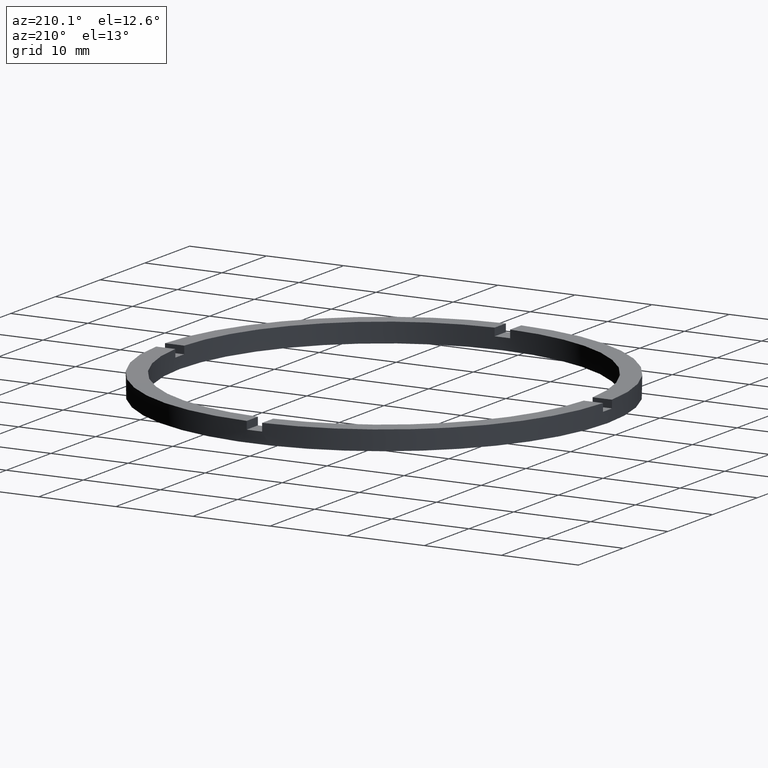
[diagram: clean part render]
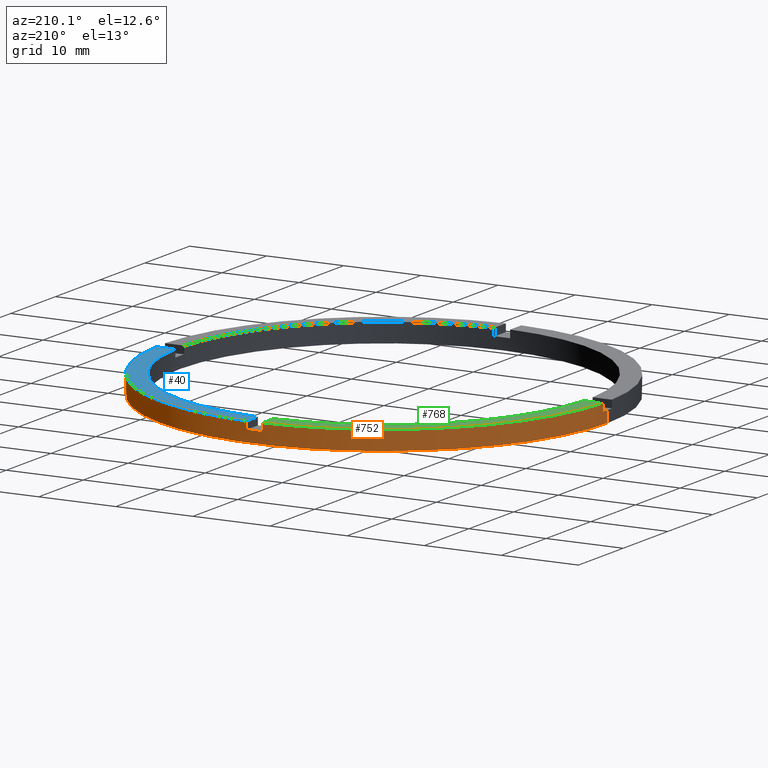
[diagram: same view with three faces highlighted in distinct colors, each labeled with its STEP entity id]
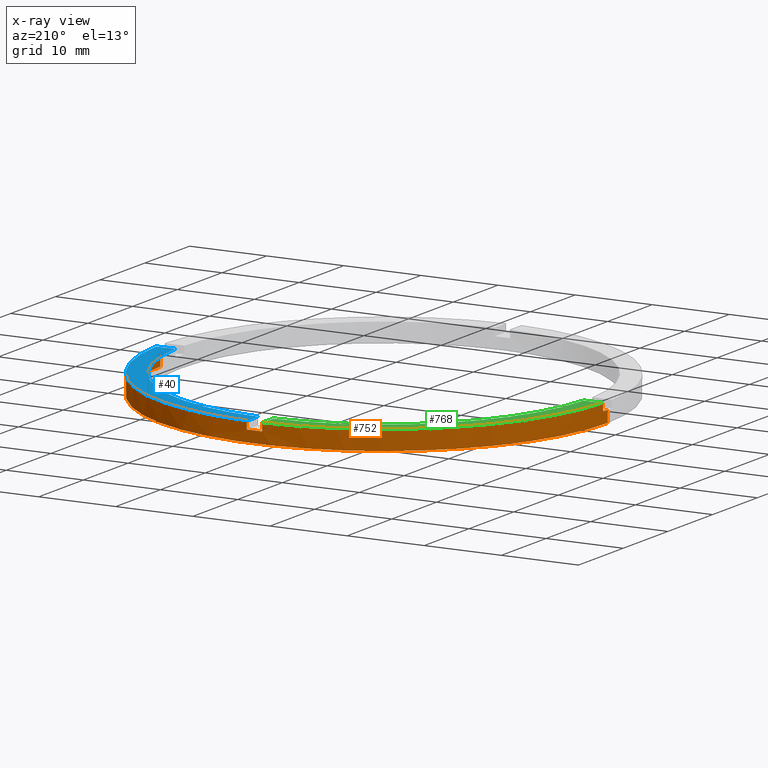
[diagram: x-ray of the same camera — body ghosted, the three highlighted faces saturated]
A machine part, auxiliary view with three faces highlighted in distinct colors.
The next image is the same camera in x-ray (body ghosted, the three faces saturated) — at least one of them is partly hidden behind the body in this view.
Their STEP definitions:

[orange] entity #752 — the highlighted cylindrical surface (partial cylindrical patch) has radius 29 mm, axis along (-0, -0, -1).
#1 = CARTESIAN_POINT ( 'NONE',  ( 0.000000000000000000, 0.000000000000000000, 1.500000000000000000 ) ) ;
#18 = ORIENTED_EDGE ( 'NONE', *, *, #492, .T. ) ;
#19 = DIRECTION ( 'NONE',  ( -0.000000000000000000, -0.000000000000000000, -1.000000000000000000 ) ) ;
#34 = EDGE_CURVE ( 'NONE', #287, #344, #604, .T. ) ;
#37 = CARTESIAN_POINT ( 'NONE',  ( 29.00000000000000000, 3.551475717527324030E-15, 2.500000000000000000 ) ) ;
#66 = AXIS2_PLACEMENT_3D ( 'NONE', #414, #274, #749 ) ;
#80 = CARTESIAN_POINT ( 'NONE',  ( 29.00000000000000000, 3.551475717527324030E-15, 1.500000000000000000 ) ) ;
#95 = CARTESIAN_POINT ( 'NONE',  ( -1.000000000000026645, 28.98275349237887610, 1.500000000000000000 ) ) ;
#97 = EDGE_CURVE ( 'NONE', #332, #778, #601, .T. ) ;
#104 = AXIS2_PLACEMENT_3D ( 'NONE', #1, #216, #400 ) ;
#105 = LINE ( 'NONE', #507, #642 ) ;
#109 = LINE ( 'NONE', #467, #386 ) ;
#133 = CIRCLE ( 'NONE', #663, 29.00000000000000000 ) ;
#144 = DIRECTION ( 'NONE',  ( 1.000000000000000000, 0.000000000000000000, 0.000000000000000000 ) ) ;
#151 = CIRCLE ( 'NONE', #671, 29.00000000000000000 ) ;
#157 = LINE ( 'NONE', #735, #668 ) ;
#161 = DIRECTION ( 'NONE',  ( 0.000000000000000000, 0.000000000000000000, 1.000000000000000000 ) ) ;
#171 = DIRECTION ( 'NONE',  ( 0.000000000000000000, 0.000000000000000000, 1.000000000000000000 ) ) ;
#184 = CIRCLE ( 'NONE', #742, 29.00000000000000000 ) ;
#189 = VERTEX_POINT ( 'NONE', #359 ) ;
#190 = CARTESIAN_POINT ( 'NONE',  ( 0.9999999999999733546, 28.98275349237887966, 2.500000000000000000 ) ) ;
#200 = VERTEX_POINT ( 'NONE', #190 ) ;
#206 = VERTEX_POINT ( 'NONE', #285 ) ;
#213 = CARTESIAN_POINT ( 'NONE',  ( 28.98275349237888321, 0.9999999999998432365, 2.500000000000000000 ) ) ;
#216 = DIRECTION ( 'NONE',  ( 0.000000000000000000, 0.000000000000000000, 1.000000000000000000 ) ) ;
#228 = CARTESIAN_POINT ( 'NONE',  ( -28.98275349237887966, 0.9999999999999726885, 2.500000000000000000 ) ) ;
#229 = EDGE_CURVE ( 'NONE', #189, #778, #133, .T. ) ;
#247 = DIRECTION ( 'NONE',  ( 0.000000000000000000, 0.000000000000000000, 1.000000000000000000 ) ) ;
#264 = DIRECTION ( 'NONE',  ( -0.000000000000000000, -0.000000000000000000, -1.000000000000000000 ) ) ;
#269 = ORIENTED_EDGE ( 'NONE', *, *, #783, .F. ) ;
#274 = DIRECTION ( 'NONE',  ( -0.000000000000000000, -0.000000000000000000, -1.000000000000000000 ) ) ;
#275 = DIRECTION ( 'NONE',  ( -0.000000000000000000, -0.000000000000000000, -1.000000000000000000 ) ) ;
#280 = ORIENTED_EDGE ( 'NONE', *, *, #499, .F. ) ;
#285 = CARTESIAN_POINT ( 'NONE',  ( -29.00000000000000000, 0.000000000000000000, 1.500000000000000000 ) ) ;
#286 = ORIENTED_EDGE ( 'NONE', *, *, #446, .F. ) ;
#287 = VERTEX_POINT ( 'NONE', #80 ) ;
#288 = VERTEX_POINT ( 'NONE', #213 ) ;
#290 = EDGE_CURVE ( 'NONE', #609, #713, #674, .T. ) ;
#296 = VERTEX_POINT ( 'NONE', #626 ) ;
#300 = ORIENTED_EDGE ( 'NONE', *, *, #229, .F. ) ;
#304 = CARTESIAN_POINT ( 'NONE',  ( 0.000000000000000000, 0.000000000000000000, 0.000000000000000000 ) ) ;
#311 = DIRECTION ( 'NONE',  ( 1.000000000000000000, 0.000000000000000000, 0.000000000000000000 ) ) ;
#321 = ORIENTED_EDGE ( 'NONE', *, *, #547, .T. ) ;
#324 = DIRECTION ( 'NONE',  ( -0.000000000000000000, -0.000000000000000000, -1.000000000000000000 ) ) ;
#327 = ORIENTED_EDGE ( 'NONE', *, *, #333, .T. ) ;
#329 = CARTESIAN_POINT ( 'NONE',  ( 0.000000000000000000, 0.000000000000000000, 1.500000000000000000 ) ) ;
#332 = VERTEX_POINT ( 'NONE', #756 ) ;
#333 = EDGE_CURVE ( 'NONE', #287, #572, #648, .T. ) ;
#344 = VERTEX_POINT ( 'NONE', #518 ) ;
#346 = ORIENTED_EDGE ( 'NONE', *, *, #97, .T. ) ;
#348 = VECTOR ( 'NONE', #171, 1000.000000000000000 ) ;
#354 = ORIENTED_EDGE ( 'NONE', *, *, #708, .T. ) ;
#359 = CARTESIAN_POINT ( 'NONE',  ( -1.000000000000026645, 28.98275349237887610, 2.500000000000000000 ) ) ;
#385 = CYLINDRICAL_SURFACE ( 'NONE', #66, 29.00000000000000000 ) ;
#386 = VECTOR ( 'NONE', #264, 1000.000000000000000 ) ;
#400 = DIRECTION ( 'NONE',  ( 1.000000000000000000, 0.000000000000000000, 0.000000000000000000 ) ) ;
#414 = CARTESIAN_POINT ( 'NONE',  ( 0.000000000000000000, 0.000000000000000000, 2.500000000000000000 ) ) ;
#434 = CARTESIAN_POINT ( 'NONE',  ( 0.000000000000000000, 0.000000000000000000, 1.500000000000000000 ) ) ;
#446 = EDGE_CURVE ( 'NONE', #288, #200, #151, .T. ) ;
#467 = CARTESIAN_POINT ( 'NONE',  ( -29.00000000000000000, 0.000000000000000000, 2.500000000000000000 ) ) ;
#479 = AXIS2_PLACEMENT_3D ( 'NONE', #434, #520, #659 ) ;
#486 = AXIS2_PLACEMENT_3D ( 'NONE', #329, #505, #739 ) ;
#492 = EDGE_CURVE ( 'NONE', #609, #200, #157, .T. ) ;
#494 = CARTESIAN_POINT ( 'NONE',  ( -1.000000000000026645, 28.98275349237887610, 2.500000000000000000 ) ) ;
#499 = EDGE_CURVE ( 'NONE', #332, #206, #673, .T. ) ;
#505 = DIRECTION ( 'NONE',  ( 0.000000000000000000, -0.000000000000000000, 1.000000000000000000 ) ) ;
#507 = CARTESIAN_POINT ( 'NONE',  ( 28.98275349237888321, 0.9999999999998432365, 2.500000000000000000 ) ) ;
#518 = CARTESIAN_POINT ( 'NONE',  ( 28.98275349237888321, 0.9999999999998432365, 1.500000000000000000 ) ) ;
#520 = DIRECTION ( 'NONE',  ( 0.000000000000000000, 0.000000000000000000, 1.000000000000000000 ) ) ;
#525 = ORIENTED_EDGE ( 'NONE', *, *, #290, .F. ) ;
#547 = EDGE_CURVE ( 'NONE', #189, #713, #694, .T. ) ;
#559 = ORIENTED_EDGE ( 'NONE', *, *, #34, .F. ) ;
#561 = EDGE_LOOP ( 'NONE', ( #559, #327, #562, #269, #280, #346, #300, #321, #525, #18, #286, #354 ) ) ;
#562 = ORIENTED_EDGE ( 'NONE', *, *, #650, .T. ) ;
#572 = VERTEX_POINT ( 'NONE', #780 ) ;
#601 = LINE ( 'NONE', #705, #348 ) ;
#604 = CIRCLE ( 'NONE', #479, 29.00000000000000000 ) ;
#606 = DIRECTION ( 'NONE',  ( 0.000000000000000000, 0.000000000000000000, 1.000000000000000000 ) ) ;
#607 = CARTESIAN_POINT ( 'NONE',  ( 0.000000000000000000, 0.000000000000000000, 2.500000000000000000 ) ) ;
#609 = VERTEX_POINT ( 'NONE', #669 ) ;
#613 = CARTESIAN_POINT ( 'NONE',  ( 0.000000000000000000, 0.000000000000000000, 2.500000000000000000 ) ) ;
#626 = CARTESIAN_POINT ( 'NONE',  ( -29.00000000000000000, 0.000000000000000000, 0.000000000000000000 ) ) ;
#639 = FACE_OUTER_BOUND ( 'NONE', #561, .T. ) ;
#642 = VECTOR ( 'NONE', #19, 1000.000000000000000 ) ;
#648 = LINE ( 'NONE', #37, #661 ) ;
#650 = EDGE_CURVE ( 'NONE', #572, #296, #184, .T. ) ;
#659 = DIRECTION ( 'NONE',  ( 1.000000000000000000, 0.000000000000000000, 0.000000000000000000 ) ) ;
#661 = VECTOR ( 'NONE', #275, 1000.000000000000000 ) ;
#663 = AXIS2_PLACEMENT_3D ( 'NONE', #613, #161, #144 ) ;
#668 = VECTOR ( 'NONE', #699, 1000.000000000000000 ) ;
#669 = CARTESIAN_POINT ( 'NONE',  ( 0.9999999999999733546, 28.98275349237887966, 1.500000000000000000 ) ) ;
#671 = AXIS2_PLACEMENT_3D ( 'NONE', #607, #247, #311 ) ;
#673 = CIRCLE ( 'NONE', #104, 29.00000000000000000 ) ;
#674 = CIRCLE ( 'NONE', #486, 29.00000000000000000 ) ;
#688 = VECTOR ( 'NONE', #324, 1000.000000000000000 ) ;
#694 = LINE ( 'NONE', #494, #688 ) ;
#699 = DIRECTION ( 'NONE',  ( 0.000000000000000000, 0.000000000000000000, 1.000000000000000000 ) ) ;
#705 = CARTESIAN_POINT ( 'NONE',  ( -28.98275349237887966, 0.9999999999999726885, 2.500000000000000000 ) ) ;
#708 = EDGE_CURVE ( 'NONE', #288, #344, #105, .T. ) ;
#713 = VERTEX_POINT ( 'NONE', #95 ) ;
#729 = DIRECTION ( 'NONE',  ( 1.000000000000000000, 0.000000000000000000, 0.000000000000000000 ) ) ;
#735 = CARTESIAN_POINT ( 'NONE',  ( 0.9999999999999733546, 28.98275349237887966, 2.500000000000000000 ) ) ;
#739 = DIRECTION ( 'NONE',  ( 1.000000000000000000, 0.000000000000000000, 0.000000000000000000 ) ) ;
#742 = AXIS2_PLACEMENT_3D ( 'NONE', #304, #606, #729 ) ;
#749 = DIRECTION ( 'NONE',  ( -1.000000000000000000, 0.000000000000000000, 0.000000000000000000 ) ) ;
#752 = ADVANCED_FACE ( 'NONE', ( #639 ), #385, .T. ) ;
#756 = CARTESIAN_POINT ( 'NONE',  ( -28.98275349237887966, 0.9999999999999726885, 1.500000000000000000 ) ) ;
#778 = VERTEX_POINT ( 'NONE', #228 ) ;
#780 = CARTESIAN_POINT ( 'NONE',  ( 29.00000000000000000, 3.551475717527324030E-15, 0.000000000000000000 ) ) ;
#783 = EDGE_CURVE ( 'NONE', #206, #296, #109, .T. ) ;

[blue] entity #40 — the highlighted planar face has unit normal (0, 0, 1).
#6 = CARTESIAN_POINT ( 'NONE',  ( 0.000000000000000000, 0.000000000000000000, 2.500000000000000000 ) ) ;
#40 = ADVANCED_FACE ( 'NONE', ( #353 ), #227, .T. ) ;
#55 = ORIENTED_EDGE ( 'NONE', *, *, #773, .F. ) ;
#60 = ORIENTED_EDGE ( 'NONE', *, *, #493, .F. ) ;
#71 = ORIENTED_EDGE ( 'NONE', *, *, #197, .F. ) ;
#128 = CIRCLE ( 'NONE', #600, 26.50000000000000355 ) ;
#151 = CIRCLE ( 'NONE', #671, 29.00000000000000000 ) ;
#164 = VECTOR ( 'NONE', #546, 1000.000000000000000 ) ;
#190 = CARTESIAN_POINT ( 'NONE',  ( 0.9999999999999733546, 28.98275349237887966, 2.500000000000000000 ) ) ;
#197 = EDGE_CURVE ( 'NONE', #707, #200, #670, .T. ) ;
#200 = VERTEX_POINT ( 'NONE', #190 ) ;
#205 = EDGE_LOOP ( 'NONE', ( #71, #55, #60, #577 ) ) ;
#212 = DIRECTION ( 'NONE',  ( 1.000000000000000000, 0.000000000000000000, 0.000000000000000000 ) ) ;
#213 = CARTESIAN_POINT ( 'NONE',  ( 28.98275349237888321, 0.9999999999998432365, 2.500000000000000000 ) ) ;
#214 = CARTESIAN_POINT ( 'NONE',  ( 0.9999999999999733546, 26.48112535373072518, 2.500000000000000000 ) ) ;
#221 = DIRECTION ( 'NONE',  ( 1.000000000000000000, 0.000000000000000000, -0.000000000000000000 ) ) ;
#224 = DIRECTION ( 'NONE',  ( 0.000000000000000000, 0.000000000000000000, 1.000000000000000000 ) ) ;
#227 = PLANE ( 'NONE',  #542 ) ;
#240 = CARTESIAN_POINT ( 'NONE',  ( 0.9999999999999733546, 19.00000000000000355, 2.500000000000000000 ) ) ;
#247 = DIRECTION ( 'NONE',  ( 0.000000000000000000, 0.000000000000000000, 1.000000000000000000 ) ) ;
#288 = VERTEX_POINT ( 'NONE', #213 ) ;
#311 = DIRECTION ( 'NONE',  ( 1.000000000000000000, 0.000000000000000000, 0.000000000000000000 ) ) ;
#353 = FACE_OUTER_BOUND ( 'NONE', #205, .T. ) ;
#387 = CARTESIAN_POINT ( 'NONE',  ( 26.48112535373072873, 0.9999999999998430145, 2.500000000000000000 ) ) ;
#399 = VECTOR ( 'NONE', #718, 1000.000000000000000 ) ;
#446 = EDGE_CURVE ( 'NONE', #288, #200, #151, .T. ) ;
#493 = EDGE_CURVE ( 'NONE', #288, #586, #672, .T. ) ;
#497 = CARTESIAN_POINT ( 'NONE',  ( 19.00000000000000000, 0.9999999999998427924, 2.500000000000000000 ) ) ;
#542 = AXIS2_PLACEMENT_3D ( 'NONE', #712, #560, #221 ) ;
#546 = DIRECTION ( 'NONE',  ( -1.000000000000000000, -4.336808689942018352E-17, -0.000000000000000000 ) ) ;
#560 = DIRECTION ( 'NONE',  ( 0.000000000000000000, 0.000000000000000000, 1.000000000000000000 ) ) ;
#577 = ORIENTED_EDGE ( 'NONE', *, *, #446, .T. ) ;
#586 = VERTEX_POINT ( 'NONE', #387 ) ;
#600 = AXIS2_PLACEMENT_3D ( 'NONE', #6, #224, #212 ) ;
#607 = CARTESIAN_POINT ( 'NONE',  ( 0.000000000000000000, 0.000000000000000000, 2.500000000000000000 ) ) ;
#670 = LINE ( 'NONE', #240, #399 ) ;
#671 = AXIS2_PLACEMENT_3D ( 'NONE', #607, #247, #311 ) ;
#672 = LINE ( 'NONE', #497, #164 ) ;
#707 = VERTEX_POINT ( 'NONE', #214 ) ;
#712 = CARTESIAN_POINT ( 'NONE',  ( 0.000000000000000000, 0.000000000000000000, 2.500000000000000000 ) ) ;
#718 = DIRECTION ( 'NONE',  ( 0.000000000000000000, 1.000000000000000000, 0.000000000000000000 ) ) ;
#773 = EDGE_CURVE ( 'NONE', #586, #707, #128, .T. ) ;

[green] entity #768 — the highlighted planar face has unit normal (0, 0, 1).
#26 = CARTESIAN_POINT ( 'NONE',  ( -19.00000000000018829, 0.9999999999999744649, 2.500000000000000000 ) ) ;
#29 = ORIENTED_EDGE ( 'NONE', *, *, #119, .F. ) ;
#31 = EDGE_LOOP ( 'NONE', ( #608, #46, #29, #534 ) ) ;
#46 = ORIENTED_EDGE ( 'NONE', *, *, #229, .T. ) ;
#75 = VERTEX_POINT ( 'NONE', #277 ) ;
#102 = CARTESIAN_POINT ( 'NONE',  ( 0.000000000000000000, 0.000000000000000000, 2.500000000000000000 ) ) ;
#119 = EDGE_CURVE ( 'NONE', #303, #778, #651, .T. ) ;
#133 = CIRCLE ( 'NONE', #663, 29.00000000000000000 ) ;
#138 = VECTOR ( 'NONE', #177, 1000.000000000000000 ) ;
#144 = DIRECTION ( 'NONE',  ( 1.000000000000000000, 0.000000000000000000, 0.000000000000000000 ) ) ;
#161 = DIRECTION ( 'NONE',  ( 0.000000000000000000, 0.000000000000000000, 1.000000000000000000 ) ) ;
#177 = DIRECTION ( 'NONE',  ( -1.000000000000000000, -1.734723475976807341E-16, 0.000000000000000000 ) ) ;
#189 = VERTEX_POINT ( 'NONE', #359 ) ;
#201 = CARTESIAN_POINT ( 'NONE',  ( 0.000000000000000000, 0.000000000000000000, 2.500000000000000000 ) ) ;
#203 = DIRECTION ( 'NONE',  ( -0.000000000000000000, -1.000000000000000000, -0.000000000000000000 ) ) ;
#228 = CARTESIAN_POINT ( 'NONE',  ( -28.98275349237887966, 0.9999999999999726885, 2.500000000000000000 ) ) ;
#229 = EDGE_CURVE ( 'NONE', #189, #778, #133, .T. ) ;
#241 = DIRECTION ( 'NONE',  ( 1.000000000000000000, 0.000000000000000000, 0.000000000000000000 ) ) ;
#248 = AXIS2_PLACEMENT_3D ( 'NONE', #102, #649, #267 ) ;
#251 = DIRECTION ( 'NONE',  ( 0.000000000000000000, 0.000000000000000000, 1.000000000000000000 ) ) ;
#267 = DIRECTION ( 'NONE',  ( 1.000000000000000000, 0.000000000000000000, -0.000000000000000000 ) ) ;
#277 = CARTESIAN_POINT ( 'NONE',  ( -1.000000000000026645, 26.48112535373072163, 2.500000000000000000 ) ) ;
#303 = VERTEX_POINT ( 'NONE', #632 ) ;
#355 = AXIS2_PLACEMENT_3D ( 'NONE', #201, #251, #241 ) ;
#359 = CARTESIAN_POINT ( 'NONE',  ( -1.000000000000026645, 28.98275349237887610, 2.500000000000000000 ) ) ;
#431 = VECTOR ( 'NONE', #203, 1000.000000000000000 ) ;
#534 = ORIENTED_EDGE ( 'NONE', *, *, #615, .F. ) ;
#608 = ORIENTED_EDGE ( 'NONE', *, *, #610, .F. ) ;
#610 = EDGE_CURVE ( 'NONE', #189, #75, #682, .T. ) ;
#613 = CARTESIAN_POINT ( 'NONE',  ( 0.000000000000000000, 0.000000000000000000, 2.500000000000000000 ) ) ;
#615 = EDGE_CURVE ( 'NONE', #75, #303, #695, .T. ) ;
#622 = CARTESIAN_POINT ( 'NONE',  ( -1.000000000000026645, 19.00000000000000355, 2.500000000000000000 ) ) ;
#629 = FACE_OUTER_BOUND ( 'NONE', #31, .T. ) ;
#632 = CARTESIAN_POINT ( 'NONE',  ( -26.48112535373072518, 0.9999999999999731326, 2.500000000000000000 ) ) ;
#649 = DIRECTION ( 'NONE',  ( 0.000000000000000000, 0.000000000000000000, 1.000000000000000000 ) ) ;
#651 = LINE ( 'NONE', #26, #138 ) ;
#663 = AXIS2_PLACEMENT_3D ( 'NONE', #613, #161, #144 ) ;
#682 = LINE ( 'NONE', #622, #431 ) ;
#695 = CIRCLE ( 'NONE', #355, 26.50000000000000355 ) ;
#716 = PLANE ( 'NONE',  #248 ) ;
#768 = ADVANCED_FACE ( 'NONE', ( #629 ), #716, .T. ) ;
#778 = VERTEX_POINT ( 'NONE', #228 ) ;